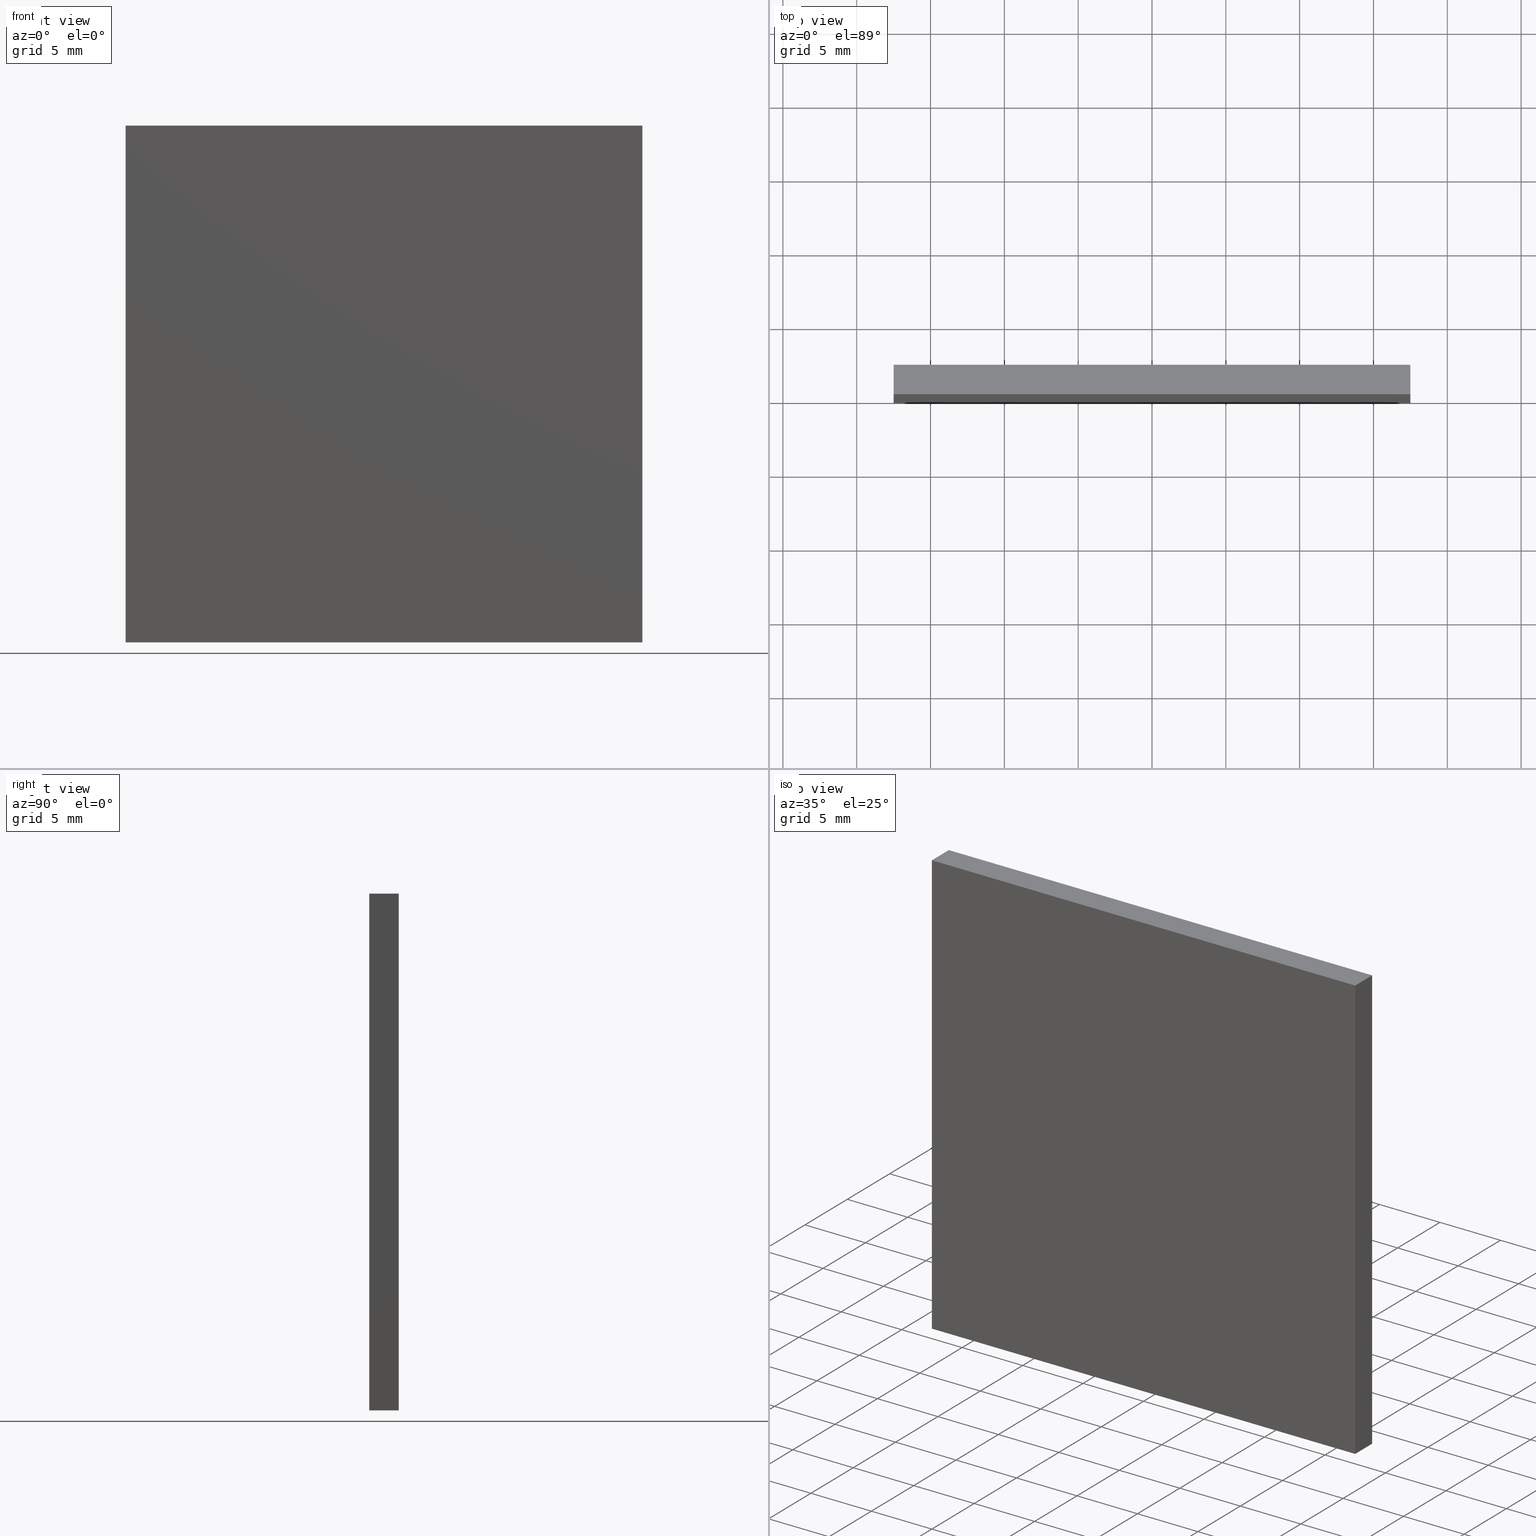
[diagram: canonical four-view strip — front | top / right | iso, engineering-drawing reading convention]
A machine part, canonical four-view strip (front | top / right | iso — engineering-drawing reading convention). The complete STEP part file that produces these views, byte-faithful:
ISO-10303-21;
HEADER;
FILE_DESCRIPTION (( 'STEP AP214' ),
    '1' );
FILE_NAME ('258513.STEP',
    '2019-08-07T02:21:44',
    ( 'user' ),
    ( '΢���й�' ),
    'SwSTEP 2.0',
    'SolidWorks 2016',
    '' );
FILE_SCHEMA (( 'AUTOMOTIVE_DESIGN' ));
ENDSEC;

DATA;
#1 = LINE ( 'NONE', #147, #58 ) ;
#2 = DIRECTION ( 'NONE',  ( -0.0000000000000000000, -0.0000000000000000000, -1.000000000000000000 ) ) ;
#3 = DIRECTION ( 'NONE',  ( 0.0000000000000000000, 0.0000000000000000000, 1.000000000000000000 ) ) ;
#4 = DIRECTION ( 'NONE',  ( 0.0000000000000000000, 1.000000000000000000, 0.0000000000000000000 ) ) ;
#5 = ORIENTED_EDGE ( 'NONE', *, *, #105, .F. ) ;
#6 = EDGE_CURVE ( 'NONE', #17, #129, #75, .T. ) ;
#7 = AXIS2_PLACEMENT_3D ( 'NONE', #67, #19, #137 ) ;
#8 = AXIS2_PLACEMENT_3D ( 'NONE', #190, #51, #64 ) ;
#9 = PLANE ( 'NONE',  #168 ) ;
#10 = UNCERTAINTY_MEASURE_WITH_UNIT (LENGTH_MEASURE( 1.000000000000000100E-005 ), #62, 'distance_accuracy_value', 'NONE');
#11 = ADVANCED_FACE ( 'NONE', ( #144 ), #90, .F. ) ;
#12 = VECTOR ( 'NONE', #37, 1000.000000000000000 ) ;
#13 = DIRECTION ( 'NONE',  ( 1.000000000000000000, 0.0000000000000000000, 0.0000000000000000000 ) ) ;
#14 =( NAMED_UNIT ( * ) SI_UNIT ( $, .STERADIAN. ) SOLID_ANGLE_UNIT ( ) );
#15 = LINE ( 'NONE', #84, #87 ) ;
#16 = LINE ( 'NONE', #138, #65 ) ;
#17 = VERTEX_POINT ( 'NONE', #193 ) ;
#18 = DIRECTION ( 'NONE',  ( 1.000000000000000000, 0.0000000000000000000, 0.0000000000000000000 ) ) ;
#19 = DIRECTION ( 'NONE',  ( 0.0000000000000000000, 1.000000000000000000, 0.0000000000000000000 ) ) ;
#20 = LINE ( 'NONE', #36, #140 ) ;
#21 = ORIENTED_EDGE ( 'NONE', *, *, #76, .F. ) ;
#22 =( NAMED_UNIT ( * ) PLANE_ANGLE_UNIT ( ) SI_UNIT ( $, .RADIAN. ) );
#23 = MANIFOLD_SOLID_BREP ( '͹̨-����1', #192 ) ;
#24 = DIRECTION ( 'NONE',  ( 0.0000000000000000000, 0.0000000000000000000, 1.000000000000000000 ) ) ;
#25 = ORIENTED_EDGE ( 'NONE', *, *, #61, .F. ) ;
#26 = VECTOR ( 'NONE', #162, 1000.000000000000000 ) ;
#27 = DIRECTION ( 'NONE',  ( 0.0000000000000000000, 0.0000000000000000000, -1.000000000000000000 ) ) ;
#28 = VERTEX_POINT ( 'NONE', #180 ) ;
#29 = STYLED_ITEM ( 'NONE', ( #122 ), #56 ) ;
#30 = ORIENTED_EDGE ( 'NONE', *, *, #130, .F. ) ;
#31 =( NAMED_UNIT ( * ) PLANE_ANGLE_UNIT ( ) SI_UNIT ( $, .RADIAN. ) );
#32 =( LENGTH_UNIT ( ) NAMED_UNIT ( * ) SI_UNIT ( .MILLI., .METRE. ) );
#33 = VERTEX_POINT ( 'NONE', #73 ) ;
#34 = ORIENTED_EDGE ( 'NONE', *, *, #77, .F. ) ;
#35 = ORIENTED_EDGE ( 'NONE', *, *, #132, .F. ) ;
#36 = CARTESIAN_POINT ( 'NONE',  ( -17.50000000000000000, 2.000000000000000000, 17.50000000000000000 ) ) ;
#37 = DIRECTION ( 'NONE',  ( -0.0000000000000000000, -1.000000000000000000, -0.0000000000000000000 ) ) ;
#38 = PLANE ( 'NONE',  #187 ) ;
#39 = VERTEX_POINT ( 'NONE', #191 ) ;
#40 = VECTOR ( 'NONE', #165, 1000.000000000000000 ) ;
#41 = SURFACE_STYLE_USAGE ( .BOTH. , #152 ) ;
#42 = PRESENTATION_LAYER_ASSIGNMENT (  '', '', ( #29 ) ) ;
#43 = VERTEX_POINT ( 'NONE', #72 ) ;
#44 = VECTOR ( 'NONE', #18, 1000.000000000000000 ) ;
#45 = CARTESIAN_POINT ( 'NONE',  ( -17.50000000000000000, 2.000000000000000000, -17.50000000000000000 ) ) ;
#46 = FILL_AREA_STYLE_COLOUR ( '', #112 ) ;
#47 = LINE ( 'NONE', #78, #12 ) ;
#48 = CARTESIAN_POINT ( 'NONE',  ( 0.0000000000000000000, 0.0000000000000000000, 0.0000000000000000000 ) ) ;
#49 = MECHANICAL_DESIGN_GEOMETRIC_PRESENTATION_REPRESENTATION (  '', ( #29 ), #59 ) ;
#50 = ADVANCED_FACE ( 'NONE', ( #115 ), #9, .F. ) ;
#51 = DIRECTION ( 'NONE',  ( 1.000000000000000000, 0.0000000000000000000, 0.0000000000000000000 ) ) ;
#52 = EDGE_CURVE ( 'NONE', #33, #28, #91, .T. ) ;
#53 = EDGE_CURVE ( 'NONE', #43, #167, #16, .T. ) ;
#54 = CARTESIAN_POINT ( 'NONE',  ( 17.50000000000000000, 2.000000000000000000, 17.50000000000000000 ) ) ;
#55 = FILL_AREA_STYLE ('',( #166 ) ) ;
#56 = ADVANCED_BREP_SHAPE_REPRESENTATION ( '258513', ( #23, #92 ), #194 ) ;
#57 = ORIENTED_EDGE ( 'NONE', *, *, #101, .F. ) ;
#58 = VECTOR ( 'NONE', #2, 1000.000000000000000 ) ;
#59 =( GEOMETRIC_REPRESENTATION_CONTEXT ( 3 ) GLOBAL_UNCERTAINTY_ASSIGNED_CONTEXT ( ( #10 ) ) GLOBAL_UNIT_ASSIGNED_CONTEXT ( ( #62, #31, #149 ) ) REPRESENTATION_CONTEXT ( 'NONE', 'WORKASPACE' ) );
#60 = DIRECTION ( 'NONE',  ( 0.0000000000000000000, 0.0000000000000000000, 1.000000000000000000 ) ) ;
#61 = EDGE_CURVE ( 'NONE', #28, #39, #96, .T. ) ;
#62 =( LENGTH_UNIT ( ) NAMED_UNIT ( * ) SI_UNIT ( .MILLI., .METRE. ) );
#63 = UNCERTAINTY_MEASURE_WITH_UNIT (LENGTH_MEASURE( 1.000000000000000100E-005 ), #32, 'distance_accuracy_value', 'NONE');
#64 = DIRECTION ( 'NONE',  ( 0.0000000000000000000, 0.0000000000000000000, -1.000000000000000000 ) ) ;
#65 = VECTOR ( 'NONE', #179, 1000.000000000000000 ) ;
#66 = EDGE_LOOP ( 'NONE', ( #89, #21, #35, #195 ) ) ;
#67 = CARTESIAN_POINT ( 'NONE',  ( 0.0000000000000000000, 2.000000000000000000, 0.0000000000000000000 ) ) ;
#68 = VECTOR ( 'NONE', #143, 1000.000000000000000 ) ;
#69 = CARTESIAN_POINT ( 'NONE',  ( -17.50000000000000000, 0.0000000000000000000, -17.50000000000000000 ) ) ;
#70 = PRODUCT ( '258513', '258513', '', ( #110 ) ) ;
#71 = SURFACE_STYLE_FILL_AREA ( #172 ) ;
#72 = CARTESIAN_POINT ( 'NONE',  ( 17.50000000000000000, 2.000000000000000000, -17.50000000000000000 ) ) ;
#73 = CARTESIAN_POINT ( 'NONE',  ( 17.50000000000000000, 2.000000000000000000, 17.50000000000000000 ) ) ;
#74 = ORIENTED_EDGE ( 'NONE', *, *, #113, .T. ) ;
#75 = LINE ( 'NONE', #128, #68 ) ;
#76 = EDGE_CURVE ( 'NONE', #43, #39, #15, .T. ) ;
#77 = EDGE_CURVE ( 'NONE', #167, #171, #175, .T. ) ;
#78 = CARTESIAN_POINT ( 'NONE',  ( -17.50000000000000000, 2.000000000000000000, -17.50000000000000000 ) ) ;
#79 = EDGE_LOOP ( 'NONE', ( #164, #5, #34, #161 ) ) ;
#80 = SURFACE_SIDE_STYLE ('',( #71 ) ) ;
#81 = PLANE ( 'NONE',  #8 ) ;
#82 = PRESENTATION_STYLE_ASSIGNMENT (( #41 ) ) ;
#83 = ORIENTED_EDGE ( 'NONE', *, *, #113, .F. ) ;
#84 = CARTESIAN_POINT ( 'NONE',  ( 17.50000000000000000, 2.000000000000000000, -17.50000000000000000 ) ) ;
#85 = DIRECTION ( 'NONE',  ( -1.000000000000000000, 0.0000000000000000000, -0.0000000000000000000 ) ) ;
#86 = EDGE_LOOP ( 'NONE', ( #158, #126, #157, #114 ) ) ;
#87 = VECTOR ( 'NONE', #182, 1000.000000000000000 ) ;
#88 = DIRECTION ( 'NONE',  ( 1.000000000000000000, 0.0000000000000000000, -0.0000000000000000000 ) ) ;
#89 = ORIENTED_EDGE ( 'NONE', *, *, #61, .T. ) ;
#90 = PLANE ( 'NONE',  #107 ) ;
#91 = LINE ( 'NONE', #54, #100 ) ;
#92 = AXIS2_PLACEMENT_3D ( 'NONE', #173, #133, #199 ) ;
#93 = ORIENTED_EDGE ( 'NONE', *, *, #105, .T. ) ;
#94 = APPLICATION_PROTOCOL_DEFINITION ( 'draft international standard', 'automotive_design', 1998, #185 ) ;
#95 = STYLED_ITEM ( 'NONE', ( #82 ), #23 ) ;
#96 = LINE ( 'NONE', #124, #40 ) ;
#97 = CARTESIAN_POINT ( 'NONE',  ( -17.50000000000000000, 2.000000000000000000, -17.50000000000000000 ) ) ;
#98 = CARTESIAN_POINT ( 'NONE',  ( -17.50000000000000000, 0.0000000000000000000, 17.50000000000000000 ) ) ;
#99 = VECTOR ( 'NONE', #13, 1000.000000000000000 ) ;
#100 = VECTOR ( 'NONE', #174, 1000.000000000000000 ) ;
#101 = EDGE_CURVE ( 'NONE', #171, #33, #169, .T. ) ;
#102 = CARTESIAN_POINT ( 'NONE',  ( -17.50000000000000000, 2.000000000000000000, -17.50000000000000000 ) ) ;
#103 = PRODUCT_DEFINITION ( 'δ֪', '', #116, #201 ) ;
#104 = ADVANCED_FACE ( 'NONE', ( #160 ), #38, .F. ) ;
#105 = EDGE_CURVE ( 'NONE', #171, #129, #20, .T. ) ;
#106 = LINE ( 'NONE', #69, #26 ) ;
#107 = AXIS2_PLACEMENT_3D ( 'NONE', #102, #24, #88 ) ;
#108 = CARTESIAN_POINT ( 'NONE',  ( -17.50000000000000000, 2.000000000000000000, 17.50000000000000000 ) ) ;
#109 = EDGE_LOOP ( 'NONE', ( #184, #30, #202, #197 ) ) ;
#110 = PRODUCT_CONTEXT ( 'NONE', #186, 'mechanical' ) ;
#111 =( NAMED_UNIT ( * ) PLANE_ANGLE_UNIT ( ) SI_UNIT ( $, .RADIAN. ) );
#112 = COLOUR_RGB ( '',1.000000000000000000, 1.000000000000000000, 1.000000000000000000 ) ;
#113 = EDGE_CURVE ( 'NONE', #129, #28, #150, .T. ) ;
#114 = ORIENTED_EDGE ( 'NONE', *, *, #101, .T. ) ;
#115 = FACE_OUTER_BOUND ( 'NONE', #178, .T. ) ;
#116 = PRODUCT_DEFINITION_FORMATION_WITH_SPECIFIED_SOURCE ( '�κ�', '', #70, .NOT_KNOWN. ) ;
#117 = CARTESIAN_POINT ( 'NONE',  ( -17.50000000000000000, 2.000000000000000000, 17.50000000000000000 ) ) ;
#118 = ADVANCED_FACE ( 'NONE', ( #196 ), #121, .T. ) ;
#119 = DIRECTION ( 'NONE',  ( -1.000000000000000000, 0.0000000000000000000, 0.0000000000000000000 ) ) ;
#120 = EDGE_CURVE ( 'NONE', #39, #17, #106, .T. ) ;
#121 = PLANE ( 'NONE',  #7 ) ;
#122 = PRESENTATION_STYLE_ASSIGNMENT (( #159 ) ) ;
#123 = PRESENTATION_LAYER_ASSIGNMENT (  '', '', ( #95 ) ) ;
#124 = CARTESIAN_POINT ( 'NONE',  ( 17.50000000000000000, 0.0000000000000000000, -17.50000000000000000 ) ) ;
#125 =( NAMED_UNIT ( * ) SI_UNIT ( $, .STERADIAN. ) SOLID_ANGLE_UNIT ( ) );
#126 = ORIENTED_EDGE ( 'NONE', *, *, #53, .T. ) ;
#127 = EDGE_LOOP ( 'NONE', ( #74, #153, #57, #93 ) ) ;
#128 = CARTESIAN_POINT ( 'NONE',  ( -17.50000000000000000, 0.0000000000000000000, -17.50000000000000000 ) ) ;
#129 = VERTEX_POINT ( 'NONE', #177 ) ;
#130 = EDGE_CURVE ( 'NONE', #167, #17, #47, .T. ) ;
#131 = PRODUCT_RELATED_PRODUCT_CATEGORY ( 'part', '', ( #70 ) ) ;
#132 = EDGE_CURVE ( 'NONE', #33, #43, #1, .T. ) ;
#133 = DIRECTION ( 'NONE',  ( 0.0000000000000000000, 0.0000000000000000000, 1.000000000000000000 ) ) ;
#134 = MECHANICAL_DESIGN_GEOMETRIC_PRESENTATION_REPRESENTATION (  '', ( #95 ), #145 ) ;
#135 = PLANE ( 'NONE',  #188 ) ;
#136 = CARTESIAN_POINT ( 'NONE',  ( 17.50000000000000000, 2.000000000000000000, -17.50000000000000000 ) ) ;
#137 = DIRECTION ( 'NONE',  ( 0.0000000000000000000, -0.0000000000000000000, 1.000000000000000000 ) ) ;
#138 = CARTESIAN_POINT ( 'NONE',  ( -17.50000000000000000, 2.000000000000000000, -17.50000000000000000 ) ) ;
#139 = FACE_OUTER_BOUND ( 'NONE', #127, .T. ) ;
#140 = VECTOR ( 'NONE', #170, 1000.000000000000000 ) ;
#141 = DIRECTION ( 'NONE',  ( 0.0000000000000000000, -0.0000000000000000000, 1.000000000000000000 ) ) ;
#142 =( LENGTH_UNIT ( ) NAMED_UNIT ( * ) SI_UNIT ( .MILLI., .METRE. ) );
#143 = DIRECTION ( 'NONE',  ( 0.0000000000000000000, 0.0000000000000000000, 1.000000000000000000 ) ) ;
#144 = FACE_OUTER_BOUND ( 'NONE', #109, .T. ) ;
#145 =( GEOMETRIC_REPRESENTATION_CONTEXT ( 3 ) GLOBAL_UNCERTAINTY_ASSIGNED_CONTEXT ( ( #148 ) ) GLOBAL_UNIT_ASSIGNED_CONTEXT ( ( #142, #22, #125 ) ) REPRESENTATION_CONTEXT ( 'NONE', 'WORKASPACE' ) );
#146 = VECTOR ( 'NONE', #60, 1000.000000000000000 ) ;
#147 = CARTESIAN_POINT ( 'NONE',  ( 17.50000000000000000, 2.000000000000000000, -17.50000000000000000 ) ) ;
#148 = UNCERTAINTY_MEASURE_WITH_UNIT (LENGTH_MEASURE( 1.000000000000000100E-005 ), #142, 'distance_accuracy_value', 'NONE');
#149 =( NAMED_UNIT ( * ) SI_UNIT ( $, .STERADIAN. ) SOLID_ANGLE_UNIT ( ) );
#150 = LINE ( 'NONE', #98, #44 ) ;
#151 = COLOUR_RGB ( '',1.000000000000000000, 1.000000000000000000, 1.000000000000000000 ) ;
#152 = SURFACE_SIDE_STYLE ('',( #183 ) ) ;
#153 = ORIENTED_EDGE ( 'NONE', *, *, #52, .F. ) ;
#154 = ORIENTED_EDGE ( 'NONE', *, *, #120, .F. ) ;
#155 = FACE_OUTER_BOUND ( 'NONE', #79, .T. ) ;
#156 = ORIENTED_EDGE ( 'NONE', *, *, #6, .F. ) ;
#157 = ORIENTED_EDGE ( 'NONE', *, *, #77, .T. ) ;
#158 = ORIENTED_EDGE ( 'NONE', *, *, #132, .T. ) ;
#159 = SURFACE_STYLE_USAGE ( .BOTH. , #80 ) ;
#160 = FACE_OUTER_BOUND ( 'NONE', #66, .T. ) ;
#161 = ORIENTED_EDGE ( 'NONE', *, *, #130, .T. ) ;
#162 = DIRECTION ( 'NONE',  ( -1.000000000000000000, -0.0000000000000000000, -0.0000000000000000000 ) ) ;
#163 = CARTESIAN_POINT ( 'NONE',  ( -17.50000000000000000, 2.000000000000000000, 17.50000000000000000 ) ) ;
#164 = ORIENTED_EDGE ( 'NONE', *, *, #6, .T. ) ;
#165 = DIRECTION ( 'NONE',  ( -0.0000000000000000000, -0.0000000000000000000, -1.000000000000000000 ) ) ;
#166 = FILL_AREA_STYLE_COLOUR ( '', #151 ) ;
#167 = VERTEX_POINT ( 'NONE', #97 ) ;
#168 = AXIS2_PLACEMENT_3D ( 'NONE', #48, #4, #141 ) ;
#169 = LINE ( 'NONE', #163, #99 ) ;
#170 = DIRECTION ( 'NONE',  ( -0.0000000000000000000, -1.000000000000000000, -0.0000000000000000000 ) ) ;
#171 = VERTEX_POINT ( 'NONE', #117 ) ;
#172 = FILL_AREA_STYLE ('',( #46 ) ) ;
#173 = CARTESIAN_POINT ( 'NONE',  ( 0.0000000000000000000, 0.0000000000000000000, 0.0000000000000000000 ) ) ;
#174 = DIRECTION ( 'NONE',  ( -0.0000000000000000000, -1.000000000000000000, -0.0000000000000000000 ) ) ;
#175 = LINE ( 'NONE', #45, #146 ) ;
#176 = ADVANCED_FACE ( 'NONE', ( #139 ), #135, .F. ) ;
#177 = CARTESIAN_POINT ( 'NONE',  ( -17.50000000000000000, 0.0000000000000000000, 17.50000000000000000 ) ) ;
#178 = EDGE_LOOP ( 'NONE', ( #25, #83, #156, #154 ) ) ;
#179 = DIRECTION ( 'NONE',  ( -1.000000000000000000, -0.0000000000000000000, -0.0000000000000000000 ) ) ;
#180 = CARTESIAN_POINT ( 'NONE',  ( 17.50000000000000000, 0.0000000000000000000, 17.50000000000000000 ) ) ;
#181 = SHAPE_DEFINITION_REPRESENTATION ( #198, #56 ) ;
#182 = DIRECTION ( 'NONE',  ( -0.0000000000000000000, -1.000000000000000000, -0.0000000000000000000 ) ) ;
#183 = SURFACE_STYLE_FILL_AREA ( #55 ) ;
#184 = ORIENTED_EDGE ( 'NONE', *, *, #120, .T. ) ;
#185 = APPLICATION_CONTEXT ( 'automotive_design' ) ;
#186 = APPLICATION_CONTEXT ( 'automotive_design' ) ;
#187 = AXIS2_PLACEMENT_3D ( 'NONE', #136, #119, #3 ) ;
#188 = AXIS2_PLACEMENT_3D ( 'NONE', #108, #27, #85 ) ;
#189 = ADVANCED_FACE ( 'NONE', ( #155 ), #81, .F. ) ;
#190 = CARTESIAN_POINT ( 'NONE',  ( -17.50000000000000000, 2.000000000000000000, -17.50000000000000000 ) ) ;
#191 = CARTESIAN_POINT ( 'NONE',  ( 17.50000000000000000, 0.0000000000000000000, -17.50000000000000000 ) ) ;
#192 = CLOSED_SHELL ( 'NONE', ( #104, #11, #189, #176, #118, #50 ) ) ;
#193 = CARTESIAN_POINT ( 'NONE',  ( -17.50000000000000000, 0.0000000000000000000, -17.50000000000000000 ) ) ;
#194 =( GEOMETRIC_REPRESENTATION_CONTEXT ( 3 ) GLOBAL_UNCERTAINTY_ASSIGNED_CONTEXT ( ( #63 ) ) GLOBAL_UNIT_ASSIGNED_CONTEXT ( ( #32, #111, #14 ) ) REPRESENTATION_CONTEXT ( 'NONE', 'WORKASPACE' ) );
#195 = ORIENTED_EDGE ( 'NONE', *, *, #52, .T. ) ;
#196 = FACE_OUTER_BOUND ( 'NONE', #86, .T. ) ;
#197 = ORIENTED_EDGE ( 'NONE', *, *, #76, .T. ) ;
#198 = PRODUCT_DEFINITION_SHAPE ( 'NONE', 'NONE',  #103 ) ;
#199 = DIRECTION ( 'NONE',  ( 1.000000000000000000, 0.0000000000000000000, 0.0000000000000000000 ) ) ;
#200 = APPLICATION_PROTOCOL_DEFINITION ( 'draft international standard', 'automotive_design', 1998, #186 ) ;
#201 = PRODUCT_DEFINITION_CONTEXT ( 'detailed design', #185, 'design' ) ;
#202 = ORIENTED_EDGE ( 'NONE', *, *, #53, .F. ) ;
ENDSEC;
END-ISO-10303-21;
